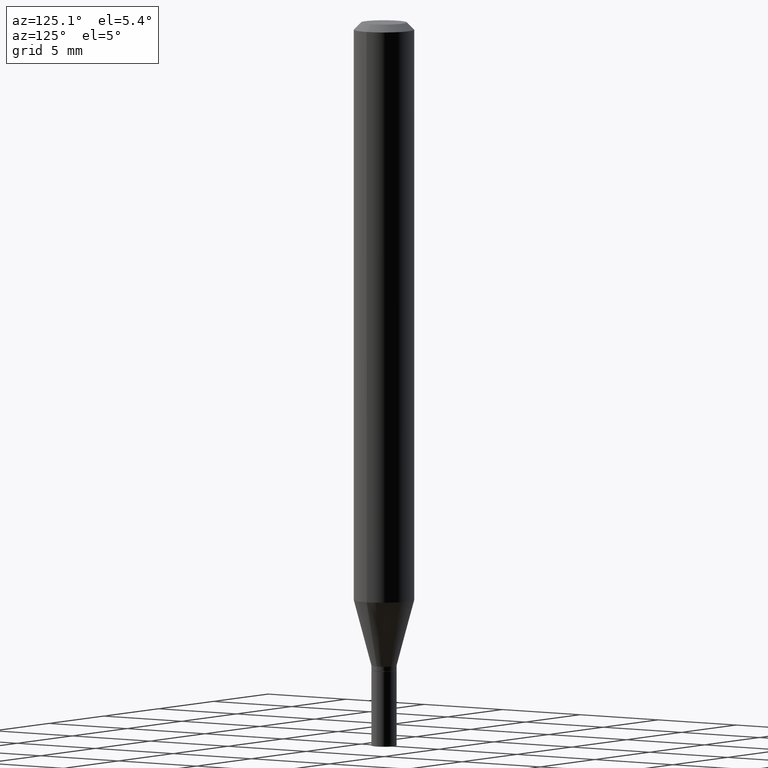
[diagram: clean part render]
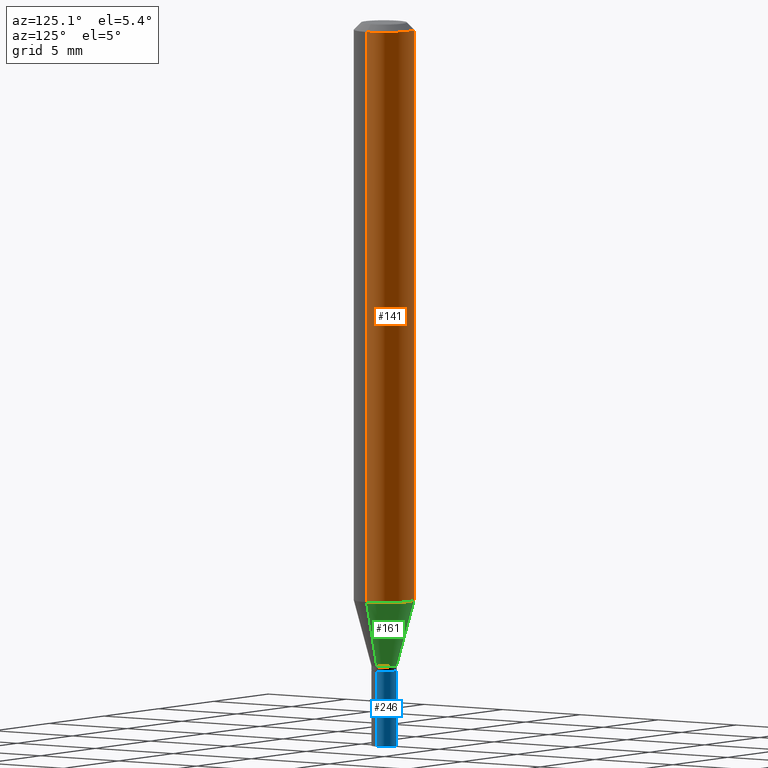
[diagram: same view with three faces highlighted in distinct colors, each labeled with its STEP entity id]
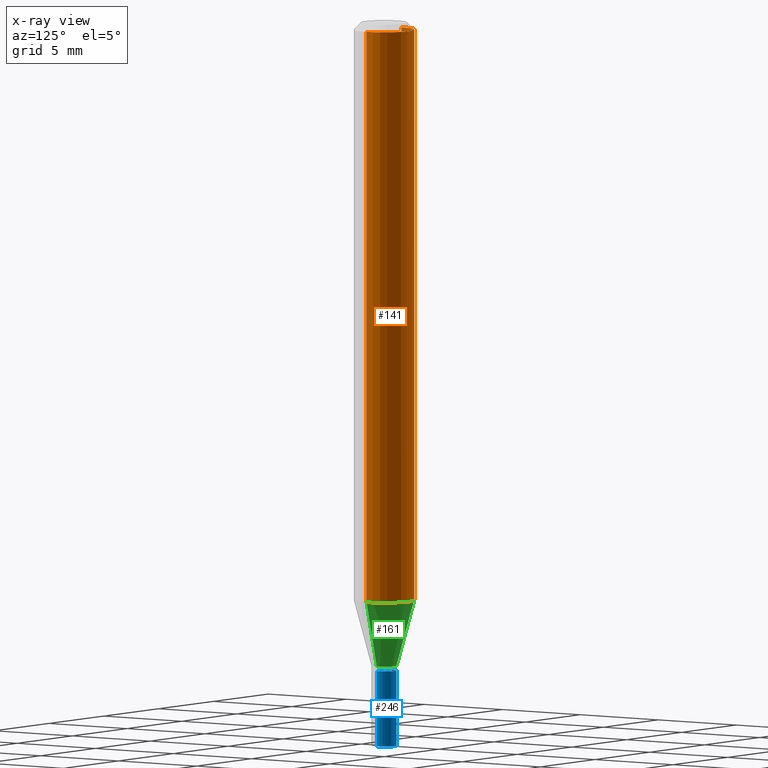
[diagram: x-ray of the same camera — body ghosted, the three highlighted faces saturated]
A machine part, auxiliary view with three faces highlighted in distinct colors.
The next image is the same camera in x-ray (body ghosted, the three faces saturated) — at least one of them is partly hidden behind the body in this view.
Their STEP definitions:

[orange] entity #141 — the highlighted cylindrical surface (edge-blend (fillet) strip) has radius 1.5875 mm, axis along (-0, 0, 1).
#3 = ORIENTED_EDGE ( 'NONE', *, *, #125, .F. ) ;
#48 = CARTESIAN_POINT ( 'NONE',  ( 2.929133982546189833E-29, -4.182027026132951363E-15, -1.197780145523736017 ) ) ;
#53 = VECTOR ( 'NONE', #350, 39.37007874015748143 ) ;
#57 = DIRECTION ( 'NONE',  ( 1.000000000000000000, -6.982962677686266711E-15, 0.000000000000000000 ) ) ;
#58 = LINE ( 'NONE', #309, #394 ) ;
#79 = LINE ( 'NONE', #421, #53 ) ;
#96 = DIRECTION ( 'NONE',  ( -2.445468806185136597E-29, 3.491481338843145583E-15, 1.000000000000000000 ) ) ;
#101 = CIRCLE ( 'NONE', #320, 0.06250000000000000000 ) ;
#107 = VERTEX_POINT ( 'NONE', #431 ) ;
#125 = EDGE_CURVE ( 'NONE', #353, #282, #79, .T. ) ;
#129 = DIRECTION ( 'NONE',  ( -2.445468806185136597E-29, 3.491481338843145583E-15, 1.000000000000000000 ) ) ;
#141 = ADVANCED_FACE ( 'NONE', ( #229 ), #465, .T. ) ;
#142 = EDGE_CURVE ( 'NONE', #361, #107, #58, .T. ) ;
#143 = ORIENTED_EDGE ( 'NONE', *, *, #186, .T. ) ;
#145 = AXIS2_PLACEMENT_3D ( 'NONE', #377, #96, #57 ) ;
#186 = EDGE_CURVE ( 'NONE', #353, #361, #101, .T. ) ;
#199 = AXIS2_PLACEMENT_3D ( 'NONE', #341, #129, #448 ) ;
#220 = EDGE_LOOP ( 'NONE', ( #143, #458, #388, #3 ) ) ;
#229 = FACE_OUTER_BOUND ( 'NONE', #220, .T. ) ;
#251 = EDGE_CURVE ( 'NONE', #282, #107, #292, .T. ) ;
#267 = DIRECTION ( 'NONE',  ( -2.445468806185136597E-29, 3.491481338843145583E-15, 1.000000000000000000 ) ) ;
#282 = VERTEX_POINT ( 'NONE', #375 ) ;
#292 = CIRCLE ( 'NONE', #145, 0.06250000000000000000 ) ;
#309 = CARTESIAN_POINT ( 'NONE',  ( -0.06250000000000000000, 4.440892098500626162E-16, -3.074334431409316114E-30 ) ) ;
#320 = AXIS2_PLACEMENT_3D ( 'NONE', #48, #267, #336 ) ;
#336 = DIRECTION ( 'NONE',  ( 1.000000000000000000, -6.982962677686270655E-15, 0.000000000000000000 ) ) ;
#341 = CARTESIAN_POINT ( 'NONE',  ( 0.000000000000000000, 0.000000000000000000, 0.000000000000000000 ) ) ;
#350 = DIRECTION ( 'NONE',  ( -2.445468806185136877E-29, 3.491481338843145188E-15, 1.000000000000000000 ) ) ;
#353 = VERTEX_POINT ( 'NONE', #401 ) ;
#361 = VERTEX_POINT ( 'NONE', #464 ) ;
#375 = CARTESIAN_POINT ( 'NONE',  ( 0.06250000000000000000, -4.888073874380388472E-16, -0.01499999999999999944 ) ) ;
#377 = CARTESIAN_POINT ( 'NONE',  ( 3.668203209277705088E-31, -5.237222008264718399E-17, -0.01499999999999999944 ) ) ;
#388 = ORIENTED_EDGE ( 'NONE', *, *, #251, .F. ) ;
#394 = VECTOR ( 'NONE', #413, 39.37007874015748143 ) ;
#401 = CARTESIAN_POINT ( 'NONE',  ( 0.06250000000000000000, -4.618462193488343821E-15, -1.197780145523736017 ) ) ;
#413 = DIRECTION ( 'NONE',  ( -2.445468806185136877E-29, 3.491481338843145188E-15, 1.000000000000000000 ) ) ;
#421 = CARTESIAN_POINT ( 'NONE',  ( 0.06250000000000000000, -4.364351673553916694E-16, 3.047610484872459871E-30 ) ) ;
#431 = CARTESIAN_POINT ( 'NONE',  ( -0.06250000000000000000, -1.673110413257736802E-15, -0.01499999999999999944 ) ) ;
#448 = DIRECTION ( 'NONE',  ( 1.000000000000000000, -6.982962677686266711E-15, 4.876176775795935793E-29 ) ) ;
#458 = ORIENTED_EDGE ( 'NONE', *, *, #142, .T. ) ;
#464 = CARTESIAN_POINT ( 'NONE',  ( -0.06250000000000000000, -3.737937816282888747E-15, -1.197780145523736017 ) ) ;
#465 = CYLINDRICAL_SURFACE ( 'NONE', #199, 0.06250000000000000000 ) ;

[blue] entity #246 — the highlighted cylindrical surface (edge-blend (fillet) strip) has radius 0.6604 mm, axis along (-0, 0, 1).
#12 = CARTESIAN_POINT ( 'NONE',  ( 0.02599999999999999534, -1.815570296198429286E-16, 1.267805961706943054E-30 ) ) ;
#20 = CIRCLE ( 'NONE', #285, 0.02599999999999999534 ) ;
#24 = ORIENTED_EDGE ( 'NONE', *, *, #416, .T. ) ;
#25 = AXIS2_PLACEMENT_3D ( 'NONE', #217, #167, #275 ) ;
#29 = EDGE_CURVE ( 'NONE', #324, #457, #335, .T. ) ;
#32 = DIRECTION ( 'NONE',  ( -2.445468806185136877E-29, 3.491481338843145188E-15, 1.000000000000000000 ) ) ;
#38 = ORIENTED_EDGE ( 'NONE', *, *, #214, .T. ) ;
#45 = VERTEX_POINT ( 'NONE', #173 ) ;
#61 = CARTESIAN_POINT ( 'NONE',  ( -0.02599999999999999534, -4.780145352537327941E-15, -1.344000000000000306 ) ) ;
#67 = ORIENTED_EDGE ( 'NONE', *, *, #29, .F. ) ;
#81 = DIRECTION ( 'NONE',  ( 1.000000000000000000, -6.982962677686258822E-15, 0.000000000000000000 ) ) ;
#103 = EDGE_LOOP ( 'NONE', ( #38, #24, #104, #67 ) ) ;
#104 = ORIENTED_EDGE ( 'NONE', *, *, #352, .F. ) ;
#117 = CARTESIAN_POINT ( 'NONE',  ( 3.668203209277704895E-29, -5.237222008264718177E-15, -1.500000000000000222 ) ) ;
#146 = DIRECTION ( 'NONE',  ( 1.000000000000000000, -6.982962677686258822E-15, 0.000000000000000000 ) ) ;
#149 = CARTESIAN_POINT ( 'NONE',  ( 3.286710075512824263E-29, -4.692550919405188553E-15, -1.344000000000000306 ) ) ;
#167 = DIRECTION ( 'NONE',  ( -2.445468806185136597E-29, 3.491481338843145583E-15, 1.000000000000000000 ) ) ;
#169 = FACE_OUTER_BOUND ( 'NONE', #103, .T. ) ;
#172 = CYLINDRICAL_SURFACE ( 'NONE', #25, 0.02599999999999999534 ) ;
#173 = CARTESIAN_POINT ( 'NONE',  ( -0.02599999999999999534, -4.780145352537327941E-15, -1.500000000000000222 ) ) ;
#214 = EDGE_CURVE ( 'NONE', #324, #45, #20, .T. ) ;
#217 = CARTESIAN_POINT ( 'NONE',  ( 0.000000000000000000, 0.000000000000000000, 0.000000000000000000 ) ) ;
#222 = CARTESIAN_POINT ( 'NONE',  ( -0.02599999999999999534, 1.847411112976260152E-16, -1.278923123466275386E-30 ) ) ;
#227 = AXIS2_PLACEMENT_3D ( 'NONE', #149, #424, #146 ) ;
#246 = ADVANCED_FACE ( 'NONE', ( #169 ), #172, .T. ) ;
#247 = CIRCLE ( 'NONE', #227, 0.02599999999999999534 ) ;
#253 = CARTESIAN_POINT ( 'NONE',  ( 0.02599999999999999534, -4.874107949025031235E-15, -1.344000000000000306 ) ) ;
#256 = DIRECTION ( 'NONE',  ( -2.445468806185136597E-29, 3.491481338843145583E-15, 1.000000000000000000 ) ) ;
#275 = DIRECTION ( 'NONE',  ( 1.000000000000000000, -6.982962677686267499E-15, 4.876176775795935793E-29 ) ) ;
#285 = AXIS2_PLACEMENT_3D ( 'NONE', #117, #256, #81 ) ;
#286 = VECTOR ( 'NONE', #32, 39.37007874015748143 ) ;
#295 = VERTEX_POINT ( 'NONE', #61 ) ;
#298 = DIRECTION ( 'NONE',  ( -2.445468806185136877E-29, 3.491481338843145188E-15, 1.000000000000000000 ) ) ;
#324 = VERTEX_POINT ( 'NONE', #407 ) ;
#335 = LINE ( 'NONE', #12, #338 ) ;
#338 = VECTOR ( 'NONE', #298, 39.37007874015748143 ) ;
#352 = EDGE_CURVE ( 'NONE', #457, #295, #247, .T. ) ;
#398 = LINE ( 'NONE', #222, #286 ) ;
#407 = CARTESIAN_POINT ( 'NONE',  ( 0.02599999999999999534, -5.418779037884561648E-15, -1.500000000000000222 ) ) ;
#416 = EDGE_CURVE ( 'NONE', #45, #295, #398, .T. ) ;
#424 = DIRECTION ( 'NONE',  ( -2.445468806185136597E-29, 3.491481338843145583E-15, 1.000000000000000000 ) ) ;
#457 = VERTEX_POINT ( 'NONE', #253 ) ;

[green] entity #161 — the highlighted conical surface has half-angle 15 deg.
#11 = LINE ( 'NONE', #232, #123 ) ;
#33 = AXIS2_PLACEMENT_3D ( 'NONE', #266, #121, #400 ) ;
#41 = CARTESIAN_POINT ( 'NONE',  ( 0.02599999999999992248, -4.839193135636598797E-15, -1.334000000000000075 ) ) ;
#42 = VERTEX_POINT ( 'NONE', #215 ) ;
#48 = CARTESIAN_POINT ( 'NONE',  ( 2.929133982546189833E-29, -4.182027026132951363E-15, -1.197780145523736017 ) ) ;
#51 = ORIENTED_EDGE ( 'NONE', *, *, #68, .T. ) ;
#56 = EDGE_CURVE ( 'NONE', #355, #353, #72, .T. ) ;
#68 = EDGE_CURVE ( 'NONE', #42, #361, #11, .T. ) ;
#72 = LINE ( 'NONE', #41, #74 ) ;
#74 = VECTOR ( 'NONE', #255, 39.37007874015747433 ) ;
#92 = AXIS2_PLACEMENT_3D ( 'NONE', #99, #414, #131 ) ;
#99 = CARTESIAN_POINT ( 'NONE',  ( 3.262255387450972157E-29, -4.657636106016756115E-15, -1.334000000000000075 ) ) ;
#101 = CIRCLE ( 'NONE', #320, 0.06250000000000000000 ) ;
#121 = DIRECTION ( 'NONE',  ( -2.445468806185136597E-29, 3.491481338843145583E-15, 1.000000000000000000 ) ) ;
#123 = VECTOR ( 'NONE', #321, 39.37007874015747433 ) ;
#131 = DIRECTION ( 'NONE',  ( 1.000000000000000000, -6.982962677686278543E-15, 0.000000000000000000 ) ) ;
#150 = CARTESIAN_POINT ( 'NONE',  ( 0.02599999999999992248, -4.839193135636598797E-15, -1.334000000000000075 ) ) ;
#161 = ADVANCED_FACE ( 'NONE', ( #378 ), #367, .T. ) ;
#186 = EDGE_CURVE ( 'NONE', #353, #361, #101, .T. ) ;
#215 = CARTESIAN_POINT ( 'NONE',  ( -0.02599999999999992248, -4.105416405501009719E-15, -1.334000000000000075 ) ) ;
#219 = ORIENTED_EDGE ( 'NONE', *, *, #56, .F. ) ;
#232 = CARTESIAN_POINT ( 'NONE',  ( -0.02599999999999992248, -4.472894994719129903E-15, -1.334000000000000075 ) ) ;
#255 = DIRECTION ( 'NONE',  ( 0.2588190451025213501, 1.565188264969621968E-15, 0.9659258262890682012 ) ) ;
#257 = ORIENTED_EDGE ( 'NONE', *, *, #186, .F. ) ;
#258 = EDGE_CURVE ( 'NONE', #355, #42, #460, .T. ) ;
#266 = CARTESIAN_POINT ( 'NONE',  ( 3.262255387450972157E-29, -4.657636106016756115E-15, -1.334000000000000075 ) ) ;
#267 = DIRECTION ( 'NONE',  ( -2.445468806185136597E-29, 3.491481338843145583E-15, 1.000000000000000000 ) ) ;
#320 = AXIS2_PLACEMENT_3D ( 'NONE', #48, #267, #336 ) ;
#321 = DIRECTION ( 'NONE',  ( -0.2588190451025213501, 5.211531920934551042E-15, 0.9659258262890682012 ) ) ;
#336 = DIRECTION ( 'NONE',  ( 1.000000000000000000, -6.982962677686270655E-15, 0.000000000000000000 ) ) ;
#353 = VERTEX_POINT ( 'NONE', #401 ) ;
#355 = VERTEX_POINT ( 'NONE', #150 ) ;
#357 = EDGE_LOOP ( 'NONE', ( #459, #51, #257, #219 ) ) ;
#361 = VERTEX_POINT ( 'NONE', #464 ) ;
#367 = CONICAL_SURFACE ( 'NONE', #33, 0.02599999999999992248, 0.2617993877991500740 ) ;
#378 = FACE_OUTER_BOUND ( 'NONE', #357, .T. ) ;
#400 = DIRECTION ( 'NONE',  ( 1.000000000000000000, -6.982962677686278543E-15, 0.000000000000000000 ) ) ;
#401 = CARTESIAN_POINT ( 'NONE',  ( 0.06250000000000000000, -4.618462193488343821E-15, -1.197780145523736017 ) ) ;
#414 = DIRECTION ( 'NONE',  ( -2.445468806185136597E-29, 3.491481338843145583E-15, 1.000000000000000000 ) ) ;
#459 = ORIENTED_EDGE ( 'NONE', *, *, #258, .T. ) ;
#460 = CIRCLE ( 'NONE', #92, 0.02599999999999992248 ) ;
#464 = CARTESIAN_POINT ( 'NONE',  ( -0.06250000000000000000, -3.737937816282888747E-15, -1.197780145523736017 ) ) ;